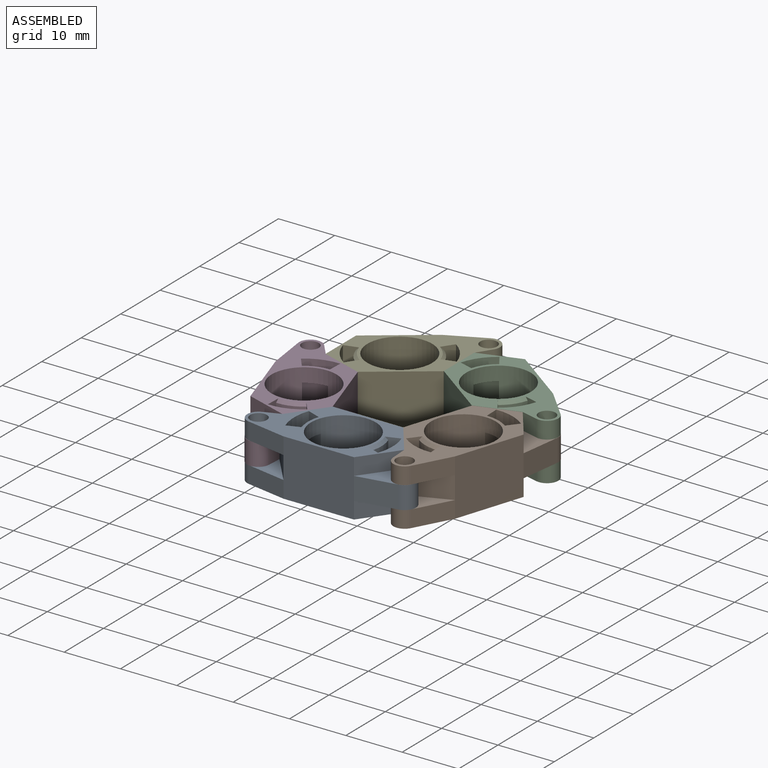
[diagram: assembled view]
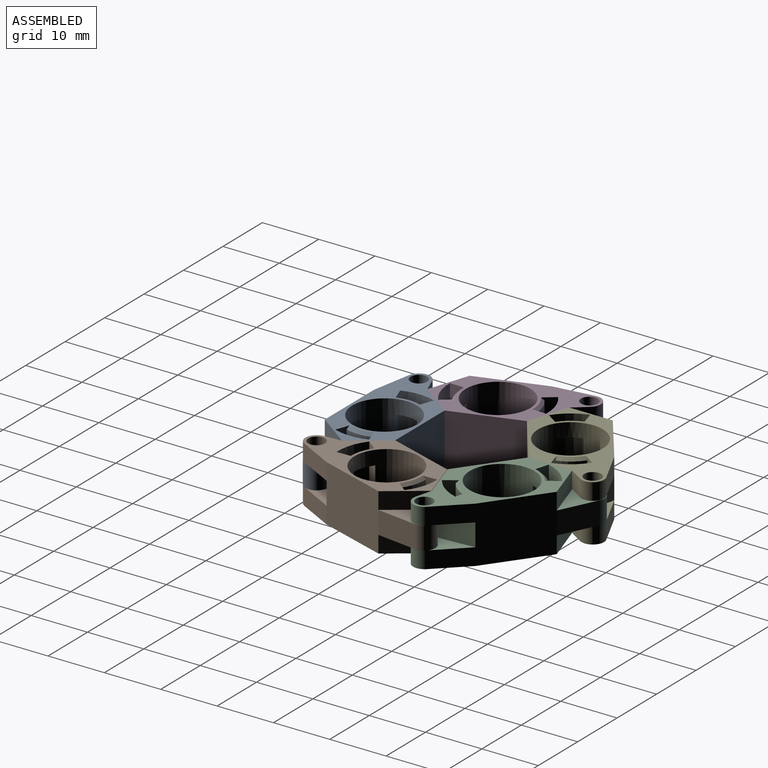
[diagram: assembled view, second angle]
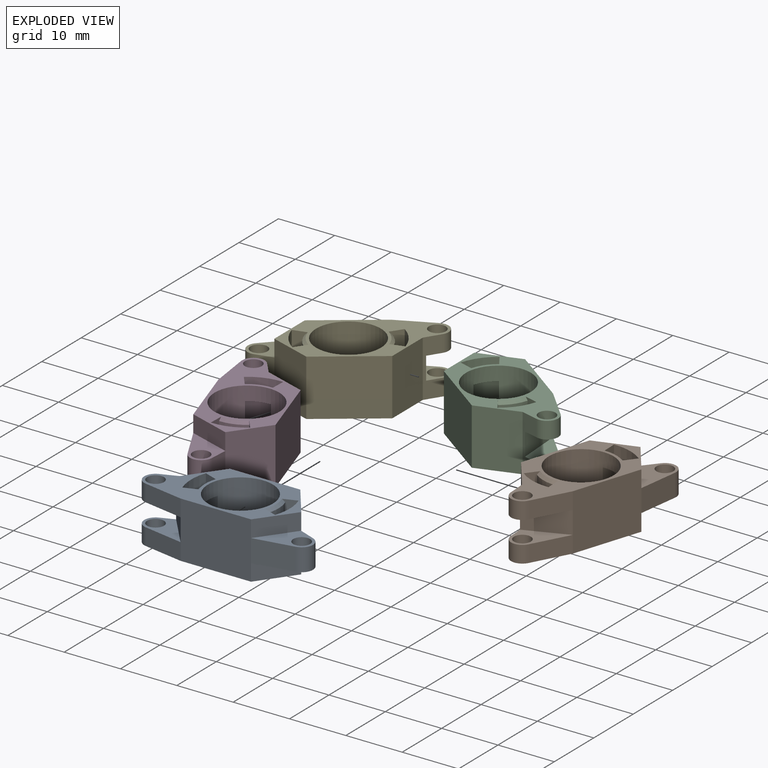
[diagram: exploded view]
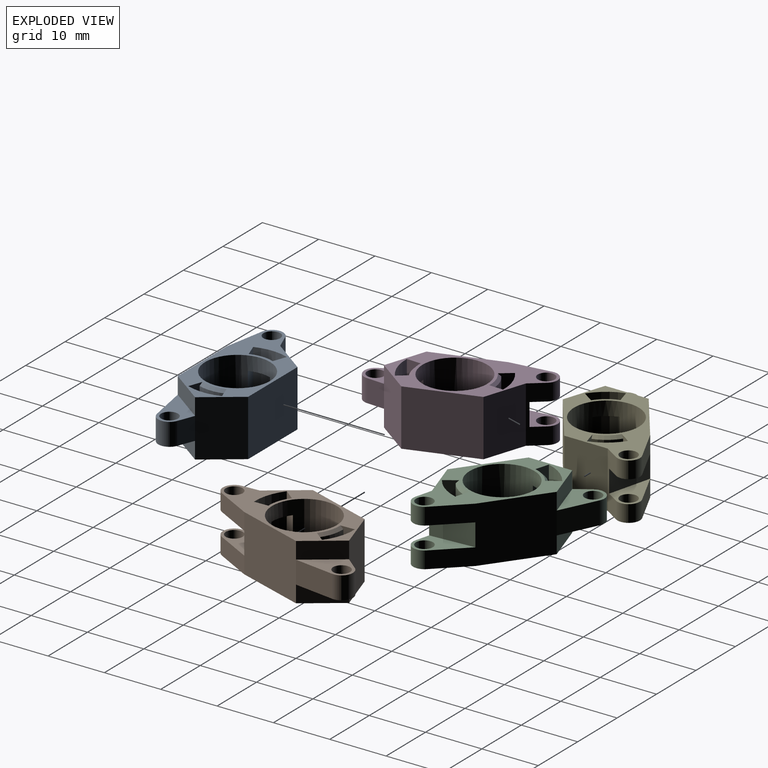
[diagram: exploded view, second angle]
ASSEMBLY  parts=5 mates=8
PART A: 41 faces, bbox 29.9x12.5x10 mm
  f0: cylinder r=6.75mm len=4.62mm, axis (0,0,1), area 9.4mm2, adj f26,f28,f38,f39
  f1: plane 25.76x12.5mm, normal (0,0,1), area 105mm2, adj f2,f3,f4,f6,f7,f8,f10,f11
  f2: plane 7.08x3mm, normal (-0.18,-0.98,0), area 21.6mm2, adj f1,f4,f7,f24
  f3: cylinder r=1.5mm len=3mm, axis (0,0,-1), area 28.3mm2, adj f1,f24
  f4: cylinder r=2mm len=3.83mm, axis (0,0,-1), area 15.5mm2, adj f1,f2,f14,f24
  f5: plane 6.25x4.54mm, normal (0.81,-0.59,0), area 23.2mm2, adj f7,f9,f10,f22
  f6: plane 12.5x10mm, normal (0,1,0), area 125mm2, adj f1,f9,f10,f12
  f7: plane 12.5x10mm, normal (0,-1,0), area 125mm2, adj f1,f2,f5,f9,f11,f13,f18,f23
  f8: cylinder r=5.75mm len=11.5mm, axis (0,0,-1), area 301.1mm2, adj f1,f9,f26,f28,f30,f32,f36,f38
  f9: plane 25.76x12.5mm, normal (0,0,-1), area 122.5mm2, adj f5,f6,f7,f8,f10,f12,f13,f14
  f10: plane 10x6.25mm, normal (0.81,0.59,0), area 77.3mm2, adj f1,f5,f6,f9,f11,f17
  f11: plane 6.25x4.54mm, normal (0.81,-0.59,0), area 23.2mm2, adj f1,f7,f10,f21
  f12: plane 10x6.25mm, normal (-0.81,0.59,0), area 77.3mm2, adj f1,f6,f9,f14
  f13: plane 7.08x3mm, normal (-0.18,-0.98,0), area 21.6mm2, adj f7,f9,f16,f25
  f14: plane 10x2.91mm, normal (-0.36,0.93,0), area 20.9mm2, adj f1,f4,f9,f12,f16,f23,f24,f25
  f15: cylinder r=1.5mm len=3mm, axis (0,0,-1), area 28.3mm2, adj f9,f25
  f16: cylinder r=2mm len=3.83mm, axis (0,0,-1), area 15.5mm2, adj f9,f13,f14,f25
  f17: plane 4x2.91mm, normal (0.36,0.93,0), area 12.5mm2, adj f10,f19,f21,f22
  f18: plane 7.08x4mm, normal (0.18,-0.98,0), area 28.8mm2, adj f7,f19,f21,f22
  f19: cylinder r=2mm len=4mm, axis (0,0,-1), area 20.7mm2, adj f17,f18,f21,f22
  f20: cylinder r=1.5mm len=4mm, axis (0,0,-1), area 37.7mm2, adj f21,f22
  f21: plane 8.72x6.25mm, normal (0,0,1), area 22mm2, adj f11,f17,f18,f19,f20
  f22: plane 8.72x6.25mm, normal (0,0,-1), area 22mm2, adj f5,f17,f18,f19,f20
  f23: plane 6.06x5.03mm, normal (-0.77,-0.64,0), area 31.5mm2, adj f7,f14,f24,f25
  f24: plane 8.72x6.06mm, normal (0,0,-1), area 20.1mm2, adj f2,f3,f4,f14,f23
  f25: plane 8.72x6.06mm, normal (0,0,1), area 20.1mm2, adj f13,f14,f15,f16,f23
  f26: plane 10x2.82mm, normal (0.34,0.94,0), area 22.6mm2, adj f0,f1,f8,f9,f27,f29,f37,f38
  f27: cylinder r=8.75mm len=7.5mm, axis (0,0,1), area 45.8mm2, adj f1,f26,f28,f29
  f28: plane 10x2.82mm, normal (0.34,-0.94,0), area 22.6mm2, adj f0,f1,f8,f9,f27,f29,f37,f38
  f29: plane 5.99x2.41mm, normal (0,0,1), area 10.8mm2, adj f26,f27,f28,f37
  f30: plane 10x2.82mm, normal (-0.34,-0.94,0), area 22.6mm2, adj f1,f8,f9,f31,f33,f34,f35,f36
  f31: cylinder r=8.75mm len=7.5mm, axis (0,0,1), area 45.8mm2, adj f1,f30,f32,f34
  f32: plane 10x2.82mm, normal (-0.34,0.94,0), area 22.6mm2, adj f1,f8,f9,f31,f33,f34,f35,f36
  f33: cylinder r=6.75mm len=4.62mm, axis (0,0,1), area 9.4mm2, adj f30,f32,f36,f40
  f34: plane 5.99x2.41mm, normal (0,0,1), area 10.8mm2, adj f30,f31,f32,f35
  f35: cylinder r=6.75mm len=4.62mm, axis (0,0,-1), area 11.8mm2, adj f9,f30,f32,f34
  f36: plane 4.62x1.35mm, normal (0,0,-1), area 4.4mm2, adj f8,f30,f32,f33
  f37: cylinder r=6.75mm len=4.62mm, axis (0,0,-1), area 11.8mm2, adj f9,f26,f28,f29
  f38: plane 4.62x1.35mm, normal (0,0,-1), area 4.4mm2, adj f0,f8,f26,f28
  f39: cone r=6.25mm half-angle=45deg, axis (0,0,-1), area 3.2mm2, adj f0,f1,f26,f28
  f40: cone r=6.25mm half-angle=45deg, axis (0,0,-1), area 3.2mm2, adj f1,f30,f32,f33
PART B: same geometry as A
PART C: same geometry as A
PART D: same geometry as A
PART E: same geometry as A
PLACE A t=(73.32,-3.95,-24.92)mm
PLACE B rot(axis=(0,0,1),72deg) t=(87.43,6.33,-24.92)mm
PLACE C rot(axis=(0,0,1),144deg) t=(81.99,22.97,-24.92)mm
PLACE D rot(axis=(0,0,-1),72deg) t=(59.17,6.29,-24.92)mm
PLACE E rot(axis=(0,0,-1),144deg) t=(64.53,22.9,-24.92)mm
MATE planar C.f1 <-> E.f1  axis (0,0,1) through (73.26,25.45,-19.92)mm
MATE planar E.f1 <-> D.f1  axis (0,0,1) through (65.91,24.79,-19.92)mm
MATE planar B.f1 <-> A.f1  axis (0,0,1) through (81.83,-0.81,-19.92)mm
MATE planar D.f10 <-> A.f12  axis (0.81,-0.59,0) through (64.78,-0.85,-24.92)mm
MATE planar B.f12 <-> A.f10  axis (-0.81,-0.59,0) through (84.1,-3.93,-19.92)mm
MATE planar C.f10 <-> E.f12  axis (-1,0,0) through (73.26,25.45,-24.92)mm
MATE planar E.f10 <-> D.f12  axis (-0.31,-0.95,0) through (59.47,15.37,-24.92)mm
MATE planar D.f1 <-> A.f1  axis (0,0,1) through (57.8,8.18,-19.92)mm
